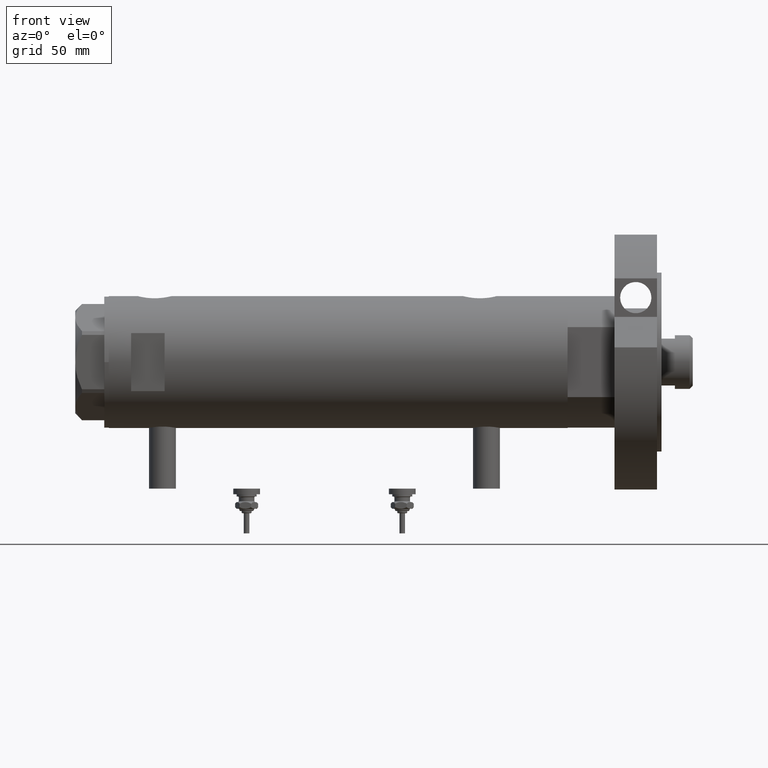
[diagram: clean part render]
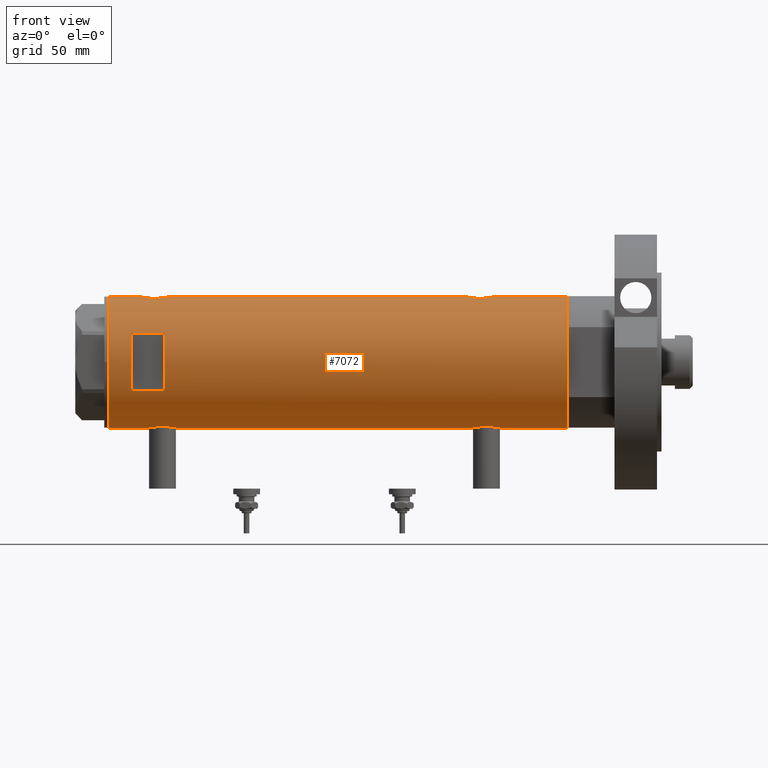
[diagram: same view with one face highlighted and labeled with its STEP entity id]
A machine part, front view. The second image highlights one B-rep face of the part: STEP entity #7072.
In plain terms, the highlighted cylindrical surface (partial cylindrical patch) has radius 29.5 mm, axis along (-1, -0, 0).
Its self-contained STEP definition (entity closure, byte-faithful):
#2 = CARTESIAN_POINT ( 'NONE',  ( -28.89828397447510966, -5.929977241120613307, -64.28388047758002699 ) ) ;
#20 = CARTESIAN_POINT ( 'NONE',  ( 28.89374847711160754, -5.952001739005060799, -67.96983981079635839 ) ) ;
#37 = VERTEX_POINT ( 'NONE', #3953 ) ;
#45 = EDGE_CURVE ( 'NONE', #37, #5165, #3525, .T. ) ;
#57 = CARTESIAN_POINT ( 'NONE',  ( -29.50000000000000355, 3.612708057484692393E-15, -102.5999999999999943 ) ) ;
#58 = CARTESIAN_POINT ( 'NONE',  ( 29.50000000000000355, -1.919926123348039602E-15, -70.89999999999999147 ) ) ;
#83 = EDGE_CURVE ( 'NONE', #222, #3600, #2303, .T. ) ;
#94 = AXIS2_PLACEMENT_3D ( 'NONE', #458, #5049, #6337 ) ;
#99 = CARTESIAN_POINT ( 'NONE',  ( 29.31311917412634926, -3.322476152549155071, -56.67157014735702347 ) ) ;
#104 = ORIENTED_EDGE ( 'NONE', *, *, #240, .T. ) ;
#122 = CARTESIAN_POINT ( 'NONE',  ( -29.31475612970062272, -3.305202271067065656, -71.60847868843855224 ) ) ;
#195 = CARTESIAN_POINT ( 'NONE',  ( 0.000000000000000000, 0.000000000000000000, 102.5999999999999943 ) ) ;
#198 = CARTESIAN_POINT ( 'NONE',  ( 29.08294968506024247, -4.955368226349214034, 87.75096718198464885 ) ) ;
#217 = CARTESIAN_POINT ( 'NONE',  ( 29.50000000000000355, 0.000000000000000000, -102.5999999999999943 ) ) ;
#221 = CARTESIAN_POINT ( 'NONE',  ( 0.000000000000000000, 0.000000000000000000, -102.5999999999999943 ) ) ;
#222 = VERTEX_POINT ( 'NONE', #1219 ) ;
#235 = CARTESIAN_POINT ( 'NONE',  ( 28.59337635119608123, -7.258007499531553108, 84.05216225651358286 ) ) ;
#240 = EDGE_CURVE ( 'NONE', #4892, #5296, #1159, .T. ) ;
#259 = CARTESIAN_POINT ( 'NONE',  ( -28.87288655002252113, -6.050870399762838581, 80.21750540721806999 ) ) ;
#280 = CARTESIAN_POINT ( 'NONE',  ( 29.05028789344173035, -5.134328181356801579, 76.62753542393731720 ) ) ;
#290 = CIRCLE ( 'NONE', #5648, 29.50000000000000355 ) ;
#298 = EDGE_CURVE ( 'NONE', #5165, #222, #6576, .T. ) ;
#302 = CARTESIAN_POINT ( 'NONE',  ( -29.25427426731712188, -3.815048240656433887, 73.63259231846663511 ) ) ;
#350 = CARTESIAN_POINT ( 'NONE',  ( 28.54678862679668327, -7.438514536388042053, 83.08958274320788462 ) ) ;
#375 = DIRECTION ( 'NONE',  ( 0.000000000000000000, 0.000000000000000000, 1.000000000000000000 ) ) ;
#442 = ORIENTED_EDGE ( 'NONE', *, *, #2111, .T. ) ;
#458 = CARTESIAN_POINT ( 'NONE',  ( 0.000000000000000000, 0.000000000000000000, 77.60000000000007958 ) ) ;
#470 = VECTOR ( 'NONE', #1948, 1000.000000000000000 ) ;
#508 = CARTESIAN_POINT ( 'NONE',  ( -29.50000000000000355, 3.612706708236066082E-15, 72.34999999999999432 ) ) ;
#518 = VECTOR ( 'NONE', #4023, 1000.000000000000000 ) ;
#571 = CARTESIAN_POINT ( 'NONE',  ( 28.53064705443909332, -7.500145243772297299, -63.89244703291116423 ) ) ;
#593 = VECTOR ( 'NONE', #375, 1000.000000000000000 ) ;
#611 = CARTESIAN_POINT ( 'NONE',  ( 28.72151714661535138, -6.735173278284154463, -60.06359529429123256 ) ) ;
#649 = CARTESIAN_POINT ( 'NONE',  ( 28.53399451186755442, -7.487442594623195724, -62.90102514498884290 ) ) ;
#661 = CARTESIAN_POINT ( 'NONE',  ( -12.96148139681573319, -26.49999999999999645, -102.5999999999999943 ) ) ;
#689 = CARTESIAN_POINT ( 'NONE',  ( 28.72051071455670623, -6.739402597165503828, -66.72718973703749157 ) ) ;
#708 = CARTESIAN_POINT ( 'NONE',  ( 29.50000000000000355, -2.245054425791785664E-15, 74.59999999999996589 ) ) ;
#711 = LINE ( 'NONE', #1983, #6517 ) ;
#727 = CARTESIAN_POINT ( 'NONE',  ( 29.05028789344173035, -5.134328181356800691, -68.87246457606266858 ) ) ;
#732 = DIRECTION ( 'NONE',  ( 0.000000000000000000, 0.000000000000000000, 1.000000000000000000 ) ) ;
#753 = CARTESIAN_POINT ( 'NONE',  ( -28.84137202824162571, -6.198846007008994796, -67.12388261123875566 ) ) ;
#765 = CARTESIAN_POINT ( 'NONE',  ( -29.25361239466580798, -3.820294933898100709, 83.56357989714041423 ) ) ;
#774 = VERTEX_POINT ( 'NONE', #708 ) ;
#798 = CARTESIAN_POINT ( 'NONE',  ( -28.99772237063719160, -5.425436006677736955, -63.17037325447360985 ) ) ;
#846 = CARTESIAN_POINT ( 'NONE',  ( -28.85437274499025406, -6.138402965889066643, 77.37243403294918664 ) ) ;
#860 = EDGE_LOOP ( 'NONE', ( #3092, #3956, #3215, #6355 ) ) ;
#889 = CARTESIAN_POINT ( 'NONE',  ( -29.08006251441182854, -4.961575945539721921, 82.40618502052524263 ) ) ;
#947 = CARTESIAN_POINT ( 'NONE',  ( 28.95592074821772854, -5.641779806288306887, 77.15226504197966051 ) ) ;
#973 = CARTESIAN_POINT ( 'NONE',  ( 29.43916859571211830, -1.954329820671505402, 74.84235520757910365 ) ) ;
#1159 = LINE ( 'NONE', #4770, #2179 ) ;
#1203 = CARTESIAN_POINT ( 'NONE',  ( -28.83260549167351527, -6.239494599049539403, -66.71615084301799925 ) ) ;
#1219 = CARTESIAN_POINT ( 'NONE',  ( 12.96148139681573319, -26.49999999999998934, 92.59999999999999432 ) ) ;
#1227 = CARTESIAN_POINT ( 'NONE',  ( 28.59337635119607768, -7.258007499531554885, -61.44783774348636030 ) ) ;
#1309 = CARTESIAN_POINT ( 'NONE',  ( 29.43922820968271381, -1.954457150219040429, -56.14210652754223219 ) ) ;
#1330 = CARTESIAN_POINT ( 'NONE',  ( -28.89999183068148270, -5.919812056825926483, -68.31500238835417349 ) ) ;
#1368 = CARTESIAN_POINT ( 'NONE',  ( -28.99856997507318823, -5.420860550814443179, -69.43723012145801476 ) ) ;
#1380 = CARTESIAN_POINT ( 'NONE',  ( -12.96148139681573319, -26.49999999999998934, 92.59999999999999432 ) ) ;
#1381 = CARTESIAN_POINT ( 'NONE',  ( -29.41741605749267308, -2.213861184585004249, 84.44831174451374523 ) ) ;
#1400 = CARTESIAN_POINT ( 'NONE',  ( 28.62986945670066774, -7.114680680403743018, 84.52393776006688597 ) ) ;
#1403 = ORIENTED_EDGE ( 'NONE', *, *, #7024, .F. ) ;
#1423 = CARTESIAN_POINT ( 'NONE',  ( -29.49128673965872238, -0.8227026017531463564, 84.80924441072095021 ) ) ;
#1441 = CARTESIAN_POINT ( 'NONE',  ( 29.31438578683259877, -3.335040812377236819, 75.36452723156224920 ) ) ;
#1455 = CARTESIAN_POINT ( 'NONE',  ( -29.37055817176825201, -2.766456155496577196, 72.99186392411090196 ) ) ;
#1475 = DIRECTION ( 'NONE',  ( 0.000000000000000000, 0.000000000000000000, 1.000000000000000000 ) ) ;
#1496 = CARTESIAN_POINT ( 'NONE',  ( -28.89999183068148270, -5.919812056825920266, 76.58499761164586062 ) ) ;
#1513 = CARTESIAN_POINT ( 'NONE',  ( 28.98816846638396427, -5.474212100855884167, 87.23252159883304557 ) ) ;
#1545 = CARTESIAN_POINT ( 'NONE',  ( 28.98740664105171660, -5.478212189394670695, 76.97180483814203455 ) ) ;
#1549 = CARTESIAN_POINT ( 'NONE',  ( 0.000000000000000000, 0.000000000000000000, 92.59999999999999432 ) ) ;
#1770 = CARTESIAN_POINT ( 'NONE',  ( 28.62983003203745014, -7.114781472982452115, -65.82273058853736813 ) ) ;
#1786 = CARTESIAN_POINT ( 'NONE',  ( -29.14490888978863481, -4.565669626908231749, -62.02701820123785126 ) ) ;
#1814 = CARTESIAN_POINT ( 'NONE',  ( -29.45797511864982710, -1.625450914296657112, -72.34905127530043956 ) ) ;
#1840 = CARTESIAN_POINT ( 'NONE',  ( 28.86290657878785026, -6.099358034152094099, -67.77130670042603811 ) ) ;
#1852 = VERTEX_POINT ( 'NONE', #217 ) ;
#1901 = ORIENTED_EDGE ( 'NONE', *, *, #5795, .T. ) ;
#1907 = CARTESIAN_POINT ( 'NONE',  ( -29.12379578281188230, -4.705261494361433705, -70.43387957720274528 ) ) ;
#1921 = CARTESIAN_POINT ( 'NONE',  ( 29.26065241255351168, -3.756597382275448371, -56.90395565180807580 ) ) ;
#1948 = DIRECTION ( 'NONE',  ( 0.000000000000000000, 0.000000000000000000, 1.000000000000000000 ) ) ;
#1951 = CARTESIAN_POINT ( 'NONE',  ( -29.45797511864983420, -1.625450914296656002, 72.55094872469950928 ) ) ;
#1983 = CARTESIAN_POINT ( 'NONE',  ( -29.50000000000000355, 3.612708057484692393E-15, -102.5999999999999943 ) ) ;
#2009 = DIRECTION ( 'NONE',  ( 1.000000000000000000, 0.000000000000000000, 0.000000000000000000 ) ) ;
#2011 = CARTESIAN_POINT ( 'NONE',  ( 28.77424839213763264, -6.509286280845844708, 78.34218748394037846 ) ) ;
#2048 = CARTESIAN_POINT ( 'NONE',  ( 29.14531914445117877, -4.579221598645971447, 88.05990232992807876 ) ) ;
#2060 = CARTESIAN_POINT ( 'NONE',  ( -29.37136442049237672, -2.777615426151010869, 84.21365112622117977 ) ) ;
#2079 = CARTESIAN_POINT ( 'NONE',  ( 28.86290657878786092, -6.099358034152096764, 77.72869329957393347 ) ) ;
#2111 = EDGE_CURVE ( 'NONE', #4866, #774, #4489, .T. ) ;
#2124 = AXIS2_PLACEMENT_3D ( 'NONE', #221, #7204, #5502 ) ;
#2179 = VECTOR ( 'NONE', #732, 1000.000000000000000 ) ;
#2303 = CIRCLE ( 'NONE', #6832, 29.50000000000000355 ) ;
#2325 = CARTESIAN_POINT ( 'NONE',  ( 29.08168479815707386, -4.954011967599724287, -69.03627368515267904 ) ) ;
#2363 = CARTESIAN_POINT ( 'NONE',  ( 29.48775985681159639, -0.9798361908152574129, -55.94769556118672682 ) ) ;
#2378 = CARTESIAN_POINT ( 'NONE',  ( -29.43333839972901345, -2.017691896334584012, -72.22935989047843464 ) ) ;
#2396 = CARTESIAN_POINT ( 'NONE',  ( 28.77541267587657714, -6.504036106227648162, -59.63371449864082052 ) ) ;
#2439 = CARTESIAN_POINT ( 'NONE',  ( 29.48742104091792271, -0.9879539515379904824, -70.85095698353975990 ) ) ;
#2461 = CARTESIAN_POINT ( 'NONE',  ( -29.25427426731712899, -3.815048240656443657, -71.26740768153337058 ) ) ;
#2474 = CARTESIAN_POINT ( 'NONE',  ( -29.12379578281188230, -4.705261494361423935, 74.46612042279726040 ) ) ;
#2486 = CARTESIAN_POINT ( 'NONE',  ( 29.14531914445116811, -4.579221598645975000, -57.44009767007188572 ) ) ;
#2541 = CARTESIAN_POINT ( 'NONE',  ( -29.37136442049237672, -2.777615426151009537, -60.68634887377884013 ) ) ;
#2550 = CARTESIAN_POINT ( 'NONE',  ( -29.05872136210575007, -5.084685578900221437, 82.24009991908759787 ) ) ;
#2570 = CARTESIAN_POINT ( 'NONE',  ( 28.53064705443909688, -7.500145243772297299, 81.60755296708880735 ) ) ;
#2586 = CARTESIAN_POINT ( 'NONE',  ( -29.50000000000000355, -5.649958391113855330E-16, 84.85000000000000853 ) ) ;
#2623 = CARTESIAN_POINT ( 'NONE',  ( -29.14490888978864191, -4.565669626908226419, 82.87298179876219706 ) ) ;
#2642 = CARTESIAN_POINT ( 'NONE',  ( -29.50000000000000355, -1.590035304987910071E-15, -60.04999999999999005 ) ) ;
#2695 = VECTOR ( 'NONE', #3859, 1000.000000000000000 ) ;
#2715 = AXIS2_PLACEMENT_3D ( 'NONE', #4940, #1475, #6592 ) ;
#2756 = CARTESIAN_POINT ( 'NONE',  ( -29.50000000000000355, 3.612708057484692393E-15, -102.5999999999999943 ) ) ;
#2889 = CARTESIAN_POINT ( 'NONE',  ( 29.33743940633121028, -3.100990836771692738, -56.56672487560931728 ) ) ;
#2927 = CARTESIAN_POINT ( 'NONE',  ( 29.49999999999999645, -0.4976091310423233494, -70.89999999999997726 ) ) ;
#2945 = CARTESIAN_POINT ( 'NONE',  ( -29.33479068874800078, -3.136645782783869851, -60.87844745385528711 ) ) ;
#2950 = ORIENTED_EDGE ( 'NONE', *, *, #6445, .F. ) ;
#2966 = CARTESIAN_POINT ( 'NONE',  ( 29.31438578683261298, -3.335040812377227049, -70.13547276843773659 ) ) ;
#2976 = DIRECTION ( 'NONE',  ( -0.000000000000000000, -0.000000000000000000, -1.000000000000000000 ) ) ;
#2981 = VERTEX_POINT ( 'NONE', #57 ) ;
#3007 = CARTESIAN_POINT ( 'NONE',  ( 28.98740664105172016, -5.478212189394670695, -68.52819516185790860 ) ) ;
#3053 = CARTESIAN_POINT ( 'NONE',  ( 29.14351131874355971, -4.576283785862469422, -69.34705324848518160 ) ) ;
#3072 = CARTESIAN_POINT ( 'NONE',  ( -28.83909499632369133, -6.209928350489664517, -65.48382218917039665 ) ) ;
#3083 = CARTESIAN_POINT ( 'NONE',  ( -29.46613381094001127, -1.427468570127966574, 84.68827540540398502 ) ) ;
#3092 = ORIENTED_EDGE ( 'NONE', *, *, #45, .F. ) ;
#3143 = CARTESIAN_POINT ( 'NONE',  ( 28.72151714661535848, -6.735173278284159792, 85.43640470570878165 ) ) ;
#3149 = CARTESIAN_POINT ( 'NONE',  ( -29.41741605749266952, -2.213861184585006914, -60.45168825548628888 ) ) ;
#3159 = CARTESIAN_POINT ( 'NONE',  ( -28.83260549167351527, -6.239494599049529633, 78.18384915698197801 ) ) ;
#3168 = FACE_BOUND ( 'NONE', #860, .T. ) ;
#3172 = VERTEX_POINT ( 'NONE', #3835 ) ;
#3202 = CARTESIAN_POINT ( 'NONE',  ( -29.12311479234995915, -4.702282052053731398, 82.72223528886483734 ) ) ;
#3215 = ORIENTED_EDGE ( 'NONE', *, *, #83, .F. ) ;
#3221 = CARTESIAN_POINT ( 'NONE',  ( 28.72051071455670979, -6.739402597165495834, 78.77281026296242317 ) ) ;
#3255 = CARTESIAN_POINT ( 'NONE',  ( 28.54347630091233512, -7.451827970232800524, 81.11943218216039497 ) ) ;
#3287 = CARTESIAN_POINT ( 'NONE',  ( 29.48742104091791205, -0.9879539515379935910, 74.64904301646019746 ) ) ;
#3361 = CARTESIAN_POINT ( 'NONE',  ( -29.50000000000000355, -5.649958391113855330E-16, 84.85000000000000853 ) ) ;
#3450 = VECTOR ( 'NONE', #2976, 1000.000000000000000 ) ;
#3462 = ORIENTED_EDGE ( 'NONE', *, *, #5476, .T. ) ;
#3511 = CARTESIAN_POINT ( 'NONE',  ( 29.08294968506023181, -4.955368226349209593, -57.74903281801530142 ) ) ;
#3525 = CIRCLE ( 'NONE', #94, 29.50000000000000355 ) ;
#3528 = CARTESIAN_POINT ( 'NONE',  ( -29.25361239466581864, -3.820294933898108258, -61.33642010285960566 ) ) ;
#3544 = ORIENTED_EDGE ( 'NONE', *, *, #7277, .F. ) ;
#3551 = CARTESIAN_POINT ( 'NONE',  ( 28.77424839213763619, -6.509286280845844708, -67.15781251605956470 ) ) ;
#3570 = CARTESIAN_POINT ( 'NONE',  ( -28.83028160285196506, -6.250189016175740520, -65.89032996785323348 ) ) ;
#3600 = VERTEX_POINT ( 'NONE', #1380 ) ;
#3605 = LINE ( 'NONE', #661, #3450 ) ;
#3615 = CARTESIAN_POINT ( 'NONE',  ( -29.33428005013168871, -3.127775714777726979, -71.71493203872593369 ) ) ;
#3616 = CARTESIAN_POINT ( 'NONE',  ( -29.50000000000000355, 3.612706708267620518E-15, -72.54999999999999716 ) ) ;
#3628 = B_SPLINE_CURVE_WITH_KNOTS ( 'NONE', 3,
 ( #4440, #5580, #5472, #6639, #4974, #6679, #4942, #6060, #7289, #2048, #198, #1513, #3811, #7318, #7253, #6132, #3143, #1400, #235, #6788, #350, #3849, #4409, #2570, #3255, #5550, #5004, #3221, #2011, #2079, #6750, #947, #1545, #280, #3879, #4340, #4302, #6193, #1441, #3769, #973, #3287, #5511, #6093 ),
 .UNSPECIFIED., .F., .F.,
 ( 4, 2, 2, 2, 2, 2, 2, 2, 2, 2, 2, 2, 2, 2, 2, 2, 2, 2, 2, 2, 2, 4 ),
 ( 0.02354540741801909587, 0.02501659793198026879, 0.02648778844594144172, 0.02722338370292202298, 0.02795897895990260076, 0.02943016947386375981, 0.03016576473084434107, 0.03090135998782492233, 0.03237255050178604321, 0.03384374101574717103, 0.03457933627272773841, 0.03531493152970829885, 0.03678612204366942667, 0.03825731255763055449, 0.03972850307159167538, 0.04046409832857222888, 0.04119969358555276850, 0.04193528884253332201, 0.04267088409951386857, 0.04414207461347498251, 0.04561326512743610340, 0.04708445564139722428 ),
 .UNSPECIFIED. ) ;
#3668 = CARTESIAN_POINT ( 'NONE',  ( -29.07948744859177381, -4.968520850090764718, 74.78663632621106672 ) ) ;
#3699 = CARTESIAN_POINT ( 'NONE',  ( -28.85437274499025406, -6.138402965889072860, -67.52756596705081904 ) ) ;
#3713 = CARTESIAN_POINT ( 'NONE',  ( -28.99772237063717739, -5.425436006677727185, 81.72962674552640294 ) ) ;
#3753 = CARTESIAN_POINT ( 'NONE',  ( 29.50000000000000355, -8.867907290838723877E-21, 89.59999999999998010 ) ) ;
#3769 = CARTESIAN_POINT ( 'NONE',  ( 29.40305664607912917, -2.432276947006154710, 74.98852198993408535 ) ) ;
#3784 = CARTESIAN_POINT ( 'NONE',  ( -28.83034328164762172, -6.249904501012241376, 78.39085460435941854 ) ) ;
#3785 = CARTESIAN_POINT ( 'NONE',  ( 29.50000000000000355, -8.867907290838723877E-21, -55.89999999999997016 ) ) ;
#3811 = CARTESIAN_POINT ( 'NONE',  ( 28.95619957017310853, -5.640369376407885937, 87.04939726490175644 ) ) ;
#3829 = CARTESIAN_POINT ( 'NONE',  ( -28.83028160285196151, -6.250189016175732526, 79.00967003214680062 ) ) ;
#3835 = CARTESIAN_POINT ( 'NONE',  ( -29.50000000000000355, -1.590035304987910071E-15, -60.04999999999999005 ) ) ;
#3837 = CIRCLE ( 'NONE', #2715, 29.50000000000000355 ) ;
#3849 = CARTESIAN_POINT ( 'NONE',  ( 28.53399451186754732, -7.487442594623194836, 82.59897485501112158 ) ) ;
#3859 = DIRECTION ( 'NONE',  ( 0.000000000000000000, 0.000000000000000000, 1.000000000000000000 ) ) ;
#3879 = CARTESIAN_POINT ( 'NONE',  ( 29.08168479815708096, -4.954011967599733168, 76.46372631484730675 ) ) ;
#3953 = CARTESIAN_POINT ( 'NONE',  ( -12.96148139681573319, -26.49999999999998934, 77.59999999999996589 ) ) ;
#3956 = ORIENTED_EDGE ( 'NONE', *, *, #5697, .F. ) ;
#3990 = LINE ( 'NONE', #5084, #518 ) ;
#4023 = DIRECTION ( 'NONE',  ( 0.000000000000000000, 0.000000000000000000, 1.000000000000000000 ) ) ;
#4107 = CARTESIAN_POINT ( 'NONE',  ( -29.21016169868140722, -4.135295259288792380, -61.59609911913490521 ) ) ;
#4126 = CARTESIAN_POINT ( 'NONE',  ( 29.40378957563274653, -2.423455993307770395, -56.28550539884012949 ) ) ;
#4144 = CARTESIAN_POINT ( 'NONE',  ( -28.83034328164762528, -6.249904501012249369, -66.50914539564061556 ) ) ;
#4189 = CARTESIAN_POINT ( 'NONE',  ( -29.38738983524999782, -2.582042051636505686, -71.99535171595380234 ) ) ;
#4213 = CARTESIAN_POINT ( 'NONE',  ( 29.23250901027694937, -3.968959760999276831, -57.03153982712335335 ) ) ;
#4233 = CARTESIAN_POINT ( 'NONE',  ( -28.96147498926091401, -5.613273026676368183, -69.07892698342581639 ) ) ;
#4250 = CARTESIAN_POINT ( 'NONE',  ( 29.17410189149616428, -4.377709617224027738, -69.49475827476021550 ) ) ;
#4268 = CARTESIAN_POINT ( 'NONE',  ( -29.21108587560690495, -4.128853169727751293, -71.00967276909594261 ) ) ;
#4283 = CARTESIAN_POINT ( 'NONE',  ( -28.96147498926092112, -5.613273026676368183, 75.82107301657420351 ) ) ;
#4302 = CARTESIAN_POINT ( 'NONE',  ( 29.17410189149617139, -4.377709617224038396, 76.00524172523977029 ) ) ;
#4317 = EDGE_CURVE ( 'NONE', #3172, #5464, #4979, .T. ) ;
#4323 = CARTESIAN_POINT ( 'NONE',  ( -29.50000000000000355, 3.612706708236066082E-15, 72.34999999999999432 ) ) ;
#4340 = CARTESIAN_POINT ( 'NONE',  ( 29.14351131874356682, -4.576283785862482745, 76.15294675151480419 ) ) ;
#4379 = CARTESIAN_POINT ( 'NONE',  ( -29.46613381094002193, -1.427468570127975456, -60.21172459459602777 ) ) ;
#4388 = CARTESIAN_POINT ( 'NONE',  ( -29.43333839972900989, -2.017691896334575130, 72.67064010952158526 ) ) ;
#4409 = CARTESIAN_POINT ( 'NONE',  ( 28.53070445389873200, -7.499926890973435789, 82.34953420512914590 ) ) ;
#4414 = CARTESIAN_POINT ( 'NONE',  ( -29.45566469296798928, -1.628675872921106160, -60.26243967371323862 ) ) ;
#4440 = CARTESIAN_POINT ( 'NONE',  ( 29.50000000000000355, -8.867907290838723877E-21, 89.59999999999998010 ) ) ;
#4473 = DIRECTION ( 'NONE',  ( 1.000000000000000000, 0.000000000000000000, 0.000000000000000000 ) ) ;
#4489 = LINE ( 'NONE', #5603, #593 ) ;
#4592 = B_SPLINE_CURVE_WITH_KNOTS ( 'NONE', 3,
 ( #4323, #5493, #6075, #1951, #4388, #7159, #1455, #5565, #5532, #302, #5997, #2474, #3668, #6728, #4283, #6691, #1496, #6621, #846, #5416, #3159, #3784, #3829, #6112, #259, #6658, #6149, #3713, #2550, #889, #3202, #2623, #4956, #765, #7300, #2060, #1381, #6579, #6039, #3083, #1423, #5453, #2586 ),
 .UNSPECIFIED., .F., .F.,
 ( 4, 2, 2, 2, 2, 2, 2, 2, 2, 1, 2, 2, 2, 2, 2, 2, 2, 2, 2, 2, 2, 4 ),
 ( 0.01959598605283711936, 0.02082041500883365093, 0.02204484396483017902, 0.02265705844282843440, 0.02326927292082669324, 0.02449370187682320399, 0.02571813083281971821, 0.02694255978881623242, 0.02755477426681450515, 0.02816698874481278481, 0.02877920322281105753, 0.02939141770080933719, 0.03061584665680588957, 0.03184027561280243501, 0.03306470456879899433, 0.03367691904679726705, 0.03428913352479553978, 0.03551356248079206440, 0.03673799143678858903, 0.03735020591478684787, 0.03796242039278510672, 0.03918684934878163828 ),
 .UNSPECIFIED. ) ;
#4622 = EDGE_LOOP ( 'NONE', ( #3544, #1901, #3462, #1403, #442, #6703, #104, #7114, #2950, #5671, #5638, #6179 ) ) ;
#4665 = CARTESIAN_POINT ( 'NONE',  ( -29.08006251441183920, -4.961575945539737909, -62.49381497947477015 ) ) ;
#4688 = CARTESIAN_POINT ( 'NONE',  ( 28.95619957017311563, -5.640369376407885049, -58.45060273509820092 ) ) ;
#4704 = CARTESIAN_POINT ( 'NONE',  ( -28.87532468301956357, -6.038983942005360817, -67.92329367688532216 ) ) ;
#4722 = CARTESIAN_POINT ( 'NONE',  ( 28.89374408016310269, -5.952042782108800445, -58.83015462974032062 ) ) ;
#4748 = VERTEX_POINT ( 'NONE', #3361 ) ;
#4770 = CARTESIAN_POINT ( 'NONE',  ( 29.50000000000000355, 0.000000000000000000, -102.5999999999999943 ) ) ;
#4814 = CARTESIAN_POINT ( 'NONE',  ( 29.50000000000000355, -8.867907290838723877E-21, -55.89999999999997016 ) ) ;
#4831 = CARTESIAN_POINT ( 'NONE',  ( -29.07948744859177381, -4.968520850090771823, -70.11336367378893897 ) ) ;
#4866 = VERTEX_POINT ( 'NONE', #3785 ) ;
#4892 = VERTEX_POINT ( 'NONE', #3753 ) ;
#4940 = CARTESIAN_POINT ( 'NONE',  ( 0.000000000000000000, 0.000000000000000000, -102.5999999999999943 ) ) ;
#4942 = CARTESIAN_POINT ( 'NONE',  ( 29.31311917412635992, -3.322476152549159067, 88.82842985264295521 ) ) ;
#4948 = CARTESIAN_POINT ( 'NONE',  ( -29.49128673965872949, -0.8227026017531592350, -60.09075558927906968 ) ) ;
#4956 = CARTESIAN_POINT ( 'NONE',  ( -29.21016169868140366, -4.135295259288786163, 83.30390088086510048 ) ) ;
#4974 = CARTESIAN_POINT ( 'NONE',  ( 29.40378957563274653, -2.423455993307769507, 89.21449460115985630 ) ) ;
#4979 = LINE ( 'NONE', #2756, #2695 ) ;
#5004 = CARTESIAN_POINT ( 'NONE',  ( 28.62983003203745369, -7.114781472982449451, 79.67726941146258923 ) ) ;
#5049 = DIRECTION ( 'NONE',  ( -0.000000000000000000, -4.625929269271487689E-15, 1.000000000000000000 ) ) ;
#5084 = CARTESIAN_POINT ( 'NONE',  ( 29.50000000000000355, 0.000000000000000000, -102.5999999999999943 ) ) ;
#5165 = VERTEX_POINT ( 'NONE', #5709 ) ;
#5220 = CARTESIAN_POINT ( 'NONE',  ( 28.86327882047614679, -6.097569254709699571, -59.02632909088548985 ) ) ;
#5241 = CARTESIAN_POINT ( 'NONE',  ( -29.49152014567324542, -0.8152473631539814969, -72.51035294833330624 ) ) ;
#5296 = VERTEX_POINT ( 'NONE', #6981 ) ;
#5319 = DIRECTION ( 'NONE',  ( 0.000000000000000000, 0.000000000000000000, 1.000000000000000000 ) ) ;
#5338 = CARTESIAN_POINT ( 'NONE',  ( 29.43916859571211120, -1.954329820671502516, -70.65764479242088214 ) ) ;
#5370 = CARTESIAN_POINT ( 'NONE',  ( 12.96148139681573319, -26.49999999999999645, -102.5999999999999943 ) ) ;
#5376 = EDGE_CURVE ( 'NONE', #6491, #3172, #6936, .T. ) ;
#5383 = CARTESIAN_POINT ( 'NONE',  ( 29.40305664607911851, -2.432276947006143164, -70.51147801006587201 ) ) ;
#5401 = CARTESIAN_POINT ( 'NONE',  ( -28.87288655002252113, -6.050870399762843910, -64.68249459278192148 ) ) ;
#5416 = CARTESIAN_POINT ( 'NONE',  ( -28.84137202824162571, -6.198846007008988579, 77.77611738876129266 ) ) ;
#5427 = CYLINDRICAL_SURFACE ( 'NONE', #2124, 29.50000000000000355 ) ;
#5453 = CARTESIAN_POINT ( 'NONE',  ( -29.50000000000000000, -0.4141077724969869922, 84.84999999999999432 ) ) ;
#5464 = VERTEX_POINT ( 'NONE', #508 ) ;
#5472 = CARTESIAN_POINT ( 'NONE',  ( 29.48775985681159284, -0.9798361908152548594, 89.55230443881325186 ) ) ;
#5476 = EDGE_CURVE ( 'NONE', #1852, #5794, #3990, .T. ) ;
#5493 = CARTESIAN_POINT ( 'NONE',  ( -29.50000000000000711, -0.4084468586314294880, 72.34999999999999432 ) ) ;
#5502 = DIRECTION ( 'NONE',  ( 1.000000000000000000, 0.000000000000000000, 0.000000000000000000 ) ) ;
#5511 = CARTESIAN_POINT ( 'NONE',  ( 29.50000000000000711, -0.4976091310423271241, 74.59999999999996589 ) ) ;
#5532 = CARTESIAN_POINT ( 'NONE',  ( -29.31475612970062627, -3.305202271067055442, 73.29152131156146766 ) ) ;
#5550 = CARTESIAN_POINT ( 'NONE',  ( 28.59279484545186989, -7.260293545345781752, 80.15593442015527614 ) ) ;
#5565 = CARTESIAN_POINT ( 'NONE',  ( -29.33428005013168871, -3.127775714777721650, 73.18506796127408620 ) ) ;
#5580 = CARTESIAN_POINT ( 'NONE',  ( 29.50000000000000355, -0.4905639552620948418, 89.59999999999996589 ) ) ;
#5603 = CARTESIAN_POINT ( 'NONE',  ( 29.50000000000000355, 0.000000000000000000, -102.5999999999999943 ) ) ;
#5638 = ORIENTED_EDGE ( 'NONE', *, *, #4317, .F. ) ;
#5648 = AXIS2_PLACEMENT_3D ( 'NONE', #195, #7251, #2009 ) ;
#5671 = ORIENTED_EDGE ( 'NONE', *, *, #7575, .F. ) ;
#5697 = EDGE_CURVE ( 'NONE', #3600, #37, #3605, .T. ) ;
#5708 = EDGE_CURVE ( 'NONE', #6385, #5296, #290, .T. ) ;
#5709 = CARTESIAN_POINT ( 'NONE',  ( 12.96148139681573319, -26.49999999999998934, 77.59999999999996589 ) ) ;
#5723 = DIRECTION ( 'NONE',  ( 0.000000000000000000, 0.000000000000000000, 1.000000000000000000 ) ) ;
#5794 = VERTEX_POINT ( 'NONE', #7287 ) ;
#5795 = EDGE_CURVE ( 'NONE', #2981, #1852, #3837, .T. ) ;
#5807 = CARTESIAN_POINT ( 'NONE',  ( 28.55627543367307553, -7.402134446380881805, -62.16780349681759787 ) ) ;
#5839 = CARTESIAN_POINT ( 'NONE',  ( 28.59279484545185923, -7.260293545345786193, -65.34406557984468122 ) ) ;
#5859 = CARTESIAN_POINT ( 'NONE',  ( -29.50000000000000355, 3.612706708267620518E-15, -72.54999999999999716 ) ) ;
#5903 = CARTESIAN_POINT ( 'NONE',  ( -29.05872136210575718, -5.084685578900231206, -62.65990008091243624 ) ) ;
#5924 = CARTESIAN_POINT ( 'NONE',  ( 28.98816846638395717, -5.474212100855879726, -58.26747840116692601 ) ) ;
#5962 = CARTESIAN_POINT ( 'NONE',  ( 28.62986945670067129, -7.114680680403742130, -60.97606223993307140 ) ) ;
#5997 = CARTESIAN_POINT ( 'NONE',  ( -29.21108587560690495, -4.128853169727745964, 73.89032723090410570 ) ) ;
#6026 = CARTESIAN_POINT ( 'NONE',  ( -28.96072448608915195, -5.617106371651702013, -63.52917268339557211 ) ) ;
#6039 = CARTESIAN_POINT ( 'NONE',  ( -29.45566469296797507, -1.628675872921092616, 84.63756032628675996 ) ) ;
#6060 = CARTESIAN_POINT ( 'NONE',  ( 29.26065241255351523, -3.756597382275449704, 88.59604434819190999 ) ) ;
#6075 = CARTESIAN_POINT ( 'NONE',  ( -29.49152014567325253, -0.8152473631539810528, 72.38964705166668523 ) ) ;
#6093 = CARTESIAN_POINT ( 'NONE',  ( 29.50000000000000355, -2.245054425791785664E-15, 74.59999999999996589 ) ) ;
#6101 = CARTESIAN_POINT ( 'NONE',  ( -29.50000000000000355, -0.4141077724969879359, -60.04999999999999005 ) ) ;
#6112 = CARTESIAN_POINT ( 'NONE',  ( -28.83909499632370199, -6.209928350489659188, 79.41617781082962324 ) ) ;
#6132 = CARTESIAN_POINT ( 'NONE',  ( 28.77541267587656648, -6.504036106227646385, 85.86628550135911553 ) ) ;
#6139 = CARTESIAN_POINT ( 'NONE',  ( -29.43130053621386821, -2.021711243143699654, -60.38244954039819845 ) ) ;
#6149 = CARTESIAN_POINT ( 'NONE',  ( -28.96072448608914129, -5.617106371651694019, 81.37082731660440515 ) ) ;
#6179 = ORIENTED_EDGE ( 'NONE', *, *, #5376, .F. ) ;
#6193 = CARTESIAN_POINT ( 'NONE',  ( 29.26166309680877475, -3.765013078516723066, 75.59489767946935501 ) ) ;
#6296 = LINE ( 'NONE', #6843, #7367 ) ;
#6337 = DIRECTION ( 'NONE',  ( 1.776356839400250267E-15, 1.000000000000000000, 4.704334850106595203E-15 ) ) ;
#6353 = B_SPLINE_CURVE_WITH_KNOTS ( 'NONE', 3,
 ( #4814, #6454, #2363, #1309, #4126, #2889, #99, #1921, #4213, #2486, #3511, #5924, #4688, #4722, #5220, #2396, #611, #5962, #1227, #5807, #7165, #649, #6418, #571, #7077, #5839, #1770, #689, #3551, #1840, #20, #7568, #3007, #727, #2325, #3053, #4250, #6584, #2966, #5383, #5338, #2439, #2927, #58 ),
 .UNSPECIFIED., .F., .F.,
 ( 4, 2, 2, 2, 2, 2, 2, 2, 2, 2, 2, 2, 2, 2, 2, 2, 2, 2, 2, 2, 2, 4 ),
 ( 0.02354540741801909587, 0.02501659793198023757, 0.02648778844594137927, 0.02722338370292194665, 0.02795897895990251403, 0.02943016947386364879, 0.03016576473084422311, 0.03090135998782480090, 0.03237255050178593219, 0.03384374101574706695, 0.03457933627272764820, 0.03531493152970824334, 0.03678612204366940586, 0.03825731255763055449, 0.03972850307159171007, 0.04046409832857227051, 0.04119969358555283095, 0.04193528884253339140, 0.04267088409951395184, 0.04414207461347504496, 0.04561326512743613809, 0.04708445564139723122 ),
 .UNSPECIFIED. ) ;
#6355 = ORIENTED_EDGE ( 'NONE', *, *, #298, .F. ) ;
#6385 = VERTEX_POINT ( 'NONE', #7056 ) ;
#6418 = CARTESIAN_POINT ( 'NONE',  ( 28.53070445389874266, -7.499926890973439342, -63.15046579487081146 ) ) ;
#6445 = EDGE_CURVE ( 'NONE', #4748, #6385, #711, .T. ) ;
#6454 = CARTESIAN_POINT ( 'NONE',  ( 29.50000000000000355, -0.4905639552620941202, -55.89999999999995595 ) ) ;
#6491 = VERTEX_POINT ( 'NONE', #3616 ) ;
#6517 = VECTOR ( 'NONE', #5319, 1000.000000000000000 ) ;
#6568 = CARTESIAN_POINT ( 'NONE',  ( -28.91427970886710597, -5.849862889315917691, -68.50993133128852719 ) ) ;
#6576 = LINE ( 'NONE', #5370, #470 ) ;
#6579 = CARTESIAN_POINT ( 'NONE',  ( -29.43130053621386111, -2.021711243143688108, 84.51755045960183566 ) ) ;
#6584 = CARTESIAN_POINT ( 'NONE',  ( 29.26166309680877831, -3.765013078516706635, -69.90510232053063078 ) ) ;
#6592 = DIRECTION ( 'NONE',  ( 1.000000000000000000, 0.000000000000000000, 0.000000000000000000 ) ) ;
#6606 = CARTESIAN_POINT ( 'NONE',  ( -29.37055817176824846, -2.766456155496580305, -71.90813607588914635 ) ) ;
#6621 = CARTESIAN_POINT ( 'NONE',  ( -28.87532468301956712, -6.038983942005353711, 76.97670632311465511 ) ) ;
#6639 = CARTESIAN_POINT ( 'NONE',  ( 29.43922820968271736, -1.954457150219037542, 89.35789347245771808 ) ) ;
#6658 = CARTESIAN_POINT ( 'NONE',  ( -28.89828397447510966, -5.929977241120605314, 80.61611952241997869 ) ) ;
#6671 = FACE_OUTER_BOUND ( 'NONE', #4622, .T. ) ;
#6679 = CARTESIAN_POINT ( 'NONE',  ( 29.33743940633121028, -3.100990836771693626, 88.93327512439064719 ) ) ;
#6691 = CARTESIAN_POINT ( 'NONE',  ( -28.91427970886710597, -5.849862889315915915, 76.39006866871152113 ) ) ;
#6703 = ORIENTED_EDGE ( 'NONE', *, *, #6914, .F. ) ;
#6728 = CARTESIAN_POINT ( 'NONE',  ( -28.99856997507319534, -5.420860550814436074, 75.46276987854201934 ) ) ;
#6750 = CARTESIAN_POINT ( 'NONE',  ( 28.89374847711160754, -5.952001739005070569, 77.53016018920365582 ) ) ;
#6788 = CARTESIAN_POINT ( 'NONE',  ( 28.55627543367307553, -7.402134446380880917, 83.33219650318234528 ) ) ;
#6817 = DIRECTION ( 'NONE',  ( -0.000000000000000000, 0.000000000000000000, -1.000000000000000000 ) ) ;
#6832 = AXIS2_PLACEMENT_3D ( 'NONE', #1549, #6817, #4473 ) ;
#6843 = CARTESIAN_POINT ( 'NONE',  ( -29.50000000000000355, 3.612708057484692393E-15, -102.5999999999999943 ) ) ;
#6914 = EDGE_CURVE ( 'NONE', #4892, #774, #3628, .T. ) ;
#6936 = B_SPLINE_CURVE_WITH_KNOTS ( 'NONE', 3,
 ( #5859, #7145, #5241, #1814, #2378, #4189, #6606, #3615, #122, #2461, #4268, #1907, #4831, #1368, #4233, #6568, #1330, #4704, #3699, #753, #1203, #4144, #3570, #3072, #5401, #2, #6026, #798, #5903, #4665, #7026, #1786, #4107, #3528, #2945, #2541, #3149, #6139, #4414, #4379, #4948, #6101, #2642 ),
 .UNSPECIFIED., .F., .F.,
 ( 4, 2, 2, 2, 2, 2, 2, 2, 2, 1, 2, 2, 2, 2, 2, 2, 2, 2, 2, 2, 2, 4 ),
 ( 0.01959598605283713324, 0.02082041500883367521, 0.02204484396483021719, 0.02265705844282847950, 0.02326927292082674181, 0.02449370187682326991, 0.02571813083281979800, 0.02694255978881632610, 0.02755477426681458841, 0.02816698874481285420, 0.02877920322281111998, 0.02939141770080938229, 0.03061584665680591039, 0.03184027561280243501, 0.03306470456879896658, 0.03367691904679723236, 0.03428913352479549814, 0.03551356248079203665, 0.03673799143678857515, 0.03735020591478684787, 0.03796242039278512059, 0.03918684934878166604 ),
 .UNSPECIFIED. ) ;
#6981 = CARTESIAN_POINT ( 'NONE',  ( 29.50000000000000355, 0.000000000000000000, 102.5999999999999943 ) ) ;
#7024 = EDGE_CURVE ( 'NONE', #4866, #5794, #6353, .T. ) ;
#7026 = CARTESIAN_POINT ( 'NONE',  ( -29.12311479234994849, -4.702282052053745609, -62.17776471113518966 ) ) ;
#7056 = CARTESIAN_POINT ( 'NONE',  ( -29.50000000000000355, 3.612708057484692393E-15, 102.5999999999999943 ) ) ;
#7072 = ADVANCED_FACE ( 'NONE', ( #6671, #3168 ), #5427, .T. ) ;
#7077 = CARTESIAN_POINT ( 'NONE',  ( 28.54347630091233512, -7.451827970232803189, -64.38056781783956239 ) ) ;
#7114 = ORIENTED_EDGE ( 'NONE', *, *, #5708, .F. ) ;
#7145 = CARTESIAN_POINT ( 'NONE',  ( -29.50000000000000711, -0.4084468586314322081, -72.54999999999999716 ) ) ;
#7159 = CARTESIAN_POINT ( 'NONE',  ( -29.38738983524999782, -2.582042051636495028, 72.90464828404618913 ) ) ;
#7165 = CARTESIAN_POINT ( 'NONE',  ( 28.54678862679669038, -7.438514536388041165, -62.41041725679207985 ) ) ;
#7204 = DIRECTION ( 'NONE',  ( 0.000000000000000000, 0.000000000000000000, 1.000000000000000000 ) ) ;
#7251 = DIRECTION ( 'NONE',  ( 0.000000000000000000, 0.000000000000000000, 1.000000000000000000 ) ) ;
#7253 = CARTESIAN_POINT ( 'NONE',  ( 28.86327882047615390, -6.097569254709699571, 86.47367090911447463 ) ) ;
#7277 = EDGE_CURVE ( 'NONE', #2981, #6491, #6296, .T. ) ;
#7287 = CARTESIAN_POINT ( 'NONE',  ( 29.50000000000000355, -1.919926123348039602E-15, -70.89999999999999147 ) ) ;
#7289 = CARTESIAN_POINT ( 'NONE',  ( 29.23250901027694937, -3.968959760999270614, 88.46846017287658981 ) ) ;
#7300 = CARTESIAN_POINT ( 'NONE',  ( -29.33479068874800078, -3.136645782783863190, 84.02155254614470437 ) ) ;
#7318 = CARTESIAN_POINT ( 'NONE',  ( 28.89374408016310269, -5.952042782108800445, 86.66984537025962254 ) ) ;
#7367 = VECTOR ( 'NONE', #5723, 1000.000000000000000 ) ;
#7568 = CARTESIAN_POINT ( 'NONE',  ( 28.95592074821772854, -5.641779806288295340, -68.34773495802029686 ) ) ;
#7575 = EDGE_CURVE ( 'NONE', #5464, #4748, #4592, .T. ) ;